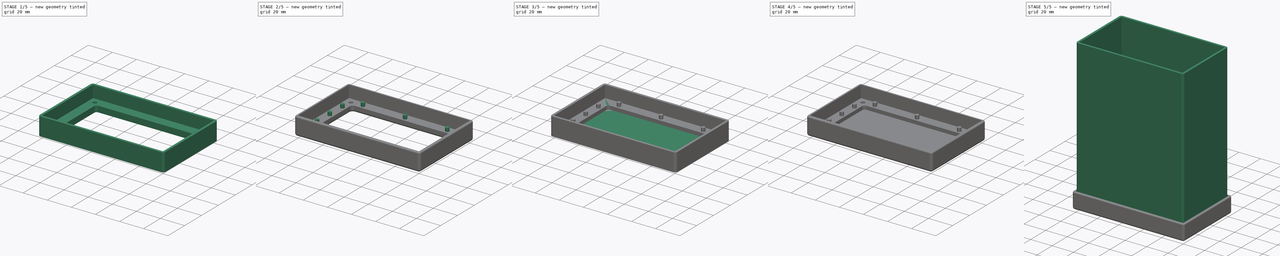
[diagram: build sequence overview — one tinted view per stage of 5, left to right]
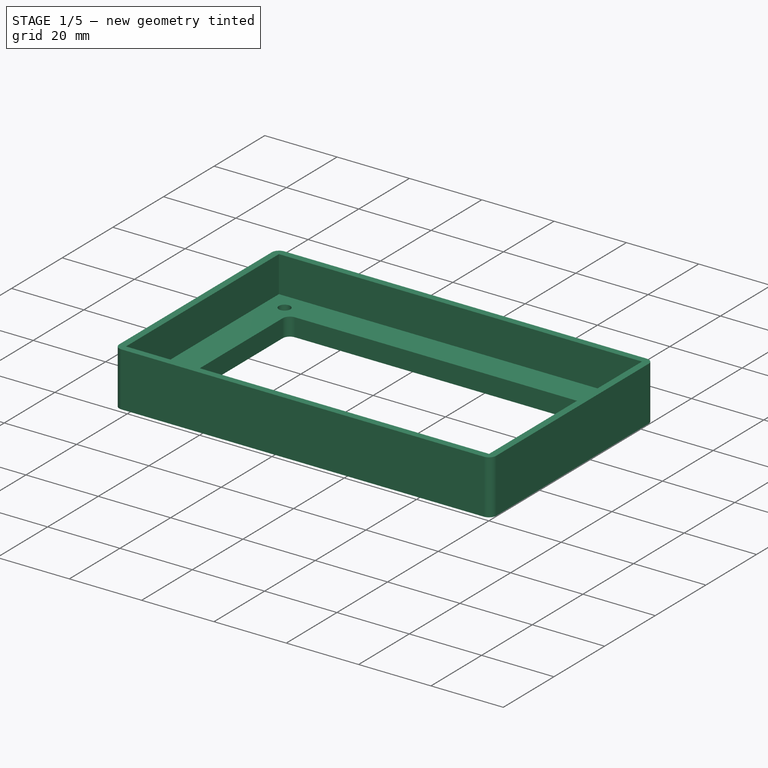
[diagram: stage 1 of 5 — iso view after this stage's code; geometry added in this stage tinted green]
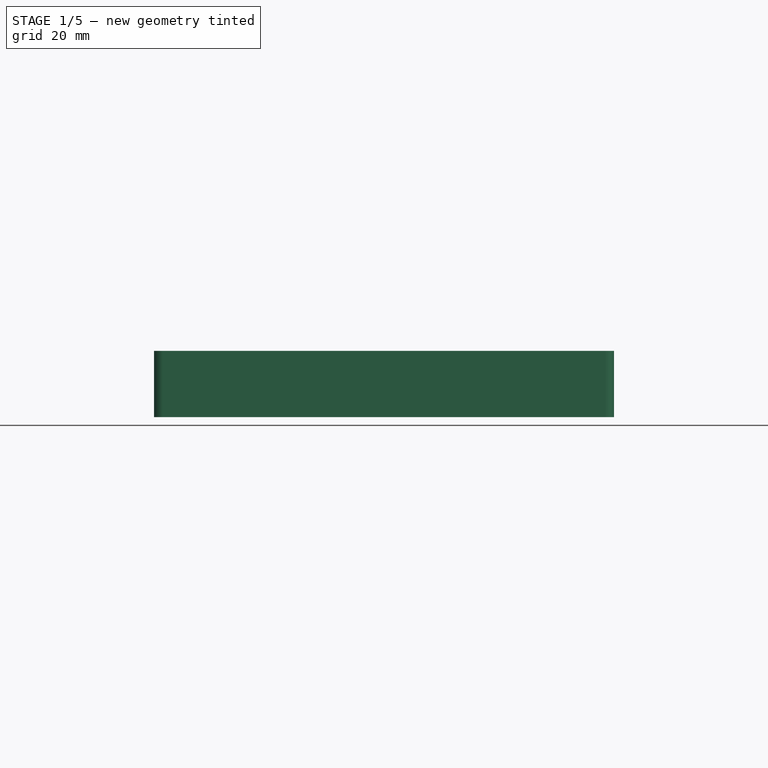
[diagram: stage 1 of 5 — front view after this stage's code; geometry added in this stage tinted green]
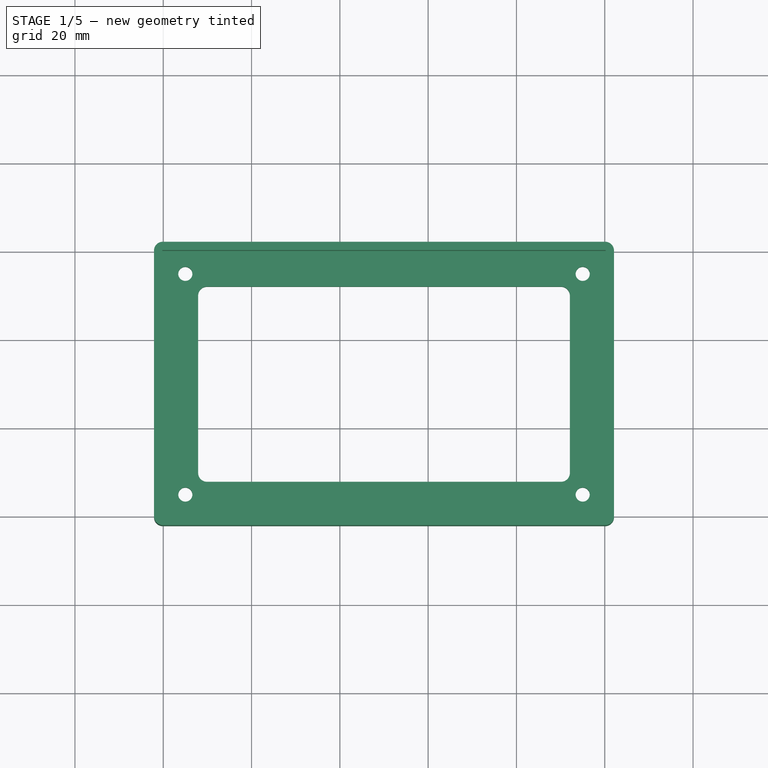
[diagram: stage 1 of 5 — top view after this stage's code; geometry added in this stage tinted green]
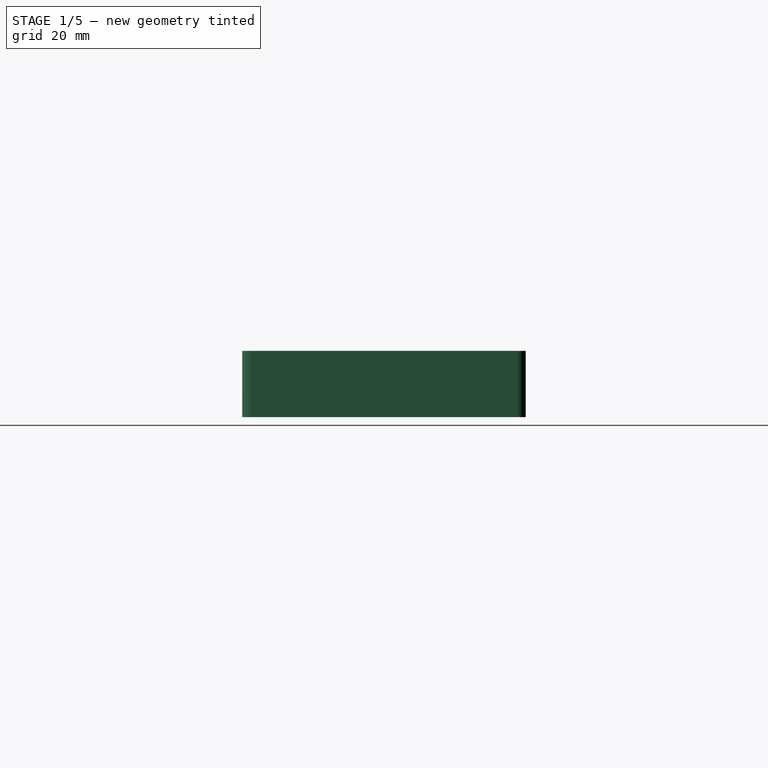
[diagram: stage 1 of 5 — right view after this stage's code; geometry added in this stage tinted green]
FCSTD DOCUMENT  (FreeCAD 0.21R33771 (Git))
Label: ADVtypeT_paramEnclosure
License: All rights reserved
LicenseURL: http://en.wikipedia.org/wiki/All_rights_reserved
objects: Sketcher::SketchObject×11, PartDesign::Pad×7, PartDesign::Body×5, PartDesign::Pocket×4, PartDesign::Fillet×4, Spreadsheet::Sheet×1
note: 46 computed .brp shape members not serialized (recipe doc carries the construction recipe); baked Part::Feature solids carry a one-line shape summary decoded from their .brp

FEATURE [PartDesign::Body] Body003  label="FrameFront"
  Group = -> [Sketch002,Pad002,Sketch004,Pocket,Sketch003,Pocket001,Fillet,Fillet001,Sketch005,Pad003]
  Origin = -> Origin125
  Placement = pos=(0,0,-7) rot=(0,0,1;0rad)
  Tip = -> Pad003
  expr: .Placement.Base.z = -Spreadsheet.thickness - 5
FEATURE [Sketcher::SketchObject] Sketch006
  FullyConstrained = true
  MapMode = 5
  expr: Constraints[13] = Spreadsheet.thickness
  expr: Constraints[14] = Spreadsheet.height + 2.1
  expr: Constraints[15] = Spreadsheet.width + 2.1
  expr: Constraints[31] = Spreadsheet.thickness
  sketch-geometry (16):
    g0: LineSegment StartX=-0.1 StartY=62.1 StartZ=0 EndX=100.1 EndY=62.1 EndZ=0
    g1: LineSegment StartX=102.1 StartY=60.1 StartZ=0 EndX=102.1 EndY=-0.1 EndZ=0
    g2: LineSegment StartX=-0.1 StartY=-2.1 StartZ=0 EndX=100.1 EndY=-2.1 EndZ=0
    g3: LineSegment StartX=-2.1 StartY=-0.1 StartZ=0 EndX=-2.1 EndY=60.1 EndZ=0
    g4: ArcOfCircle CenterX=-0.1 CenterY=60.1 CenterZ=0 NormalX=0 NormalY=0 NormalZ=1 AngleXU=0 Radius=2 StartAngle=1.5708 EndAngle=3.14159
    g5: ArcOfCircle CenterX=100.1 CenterY=60.1 CenterZ=0 NormalX=0 NormalY=0 NormalZ=1 AngleXU=0 Radius=2 StartAngle=1.1e-15 EndAngle=1.5708
    g6: ArcOfCircle CenterX=100.1 CenterY=-0.1 CenterZ=0 NormalX=0 NormalY=0 NormalZ=1 AngleXU=0 Radius=2 StartAngle=4.71239 EndAngle=6.28319
    g7: ArcOfCircle CenterX=-0.1 CenterY=-0.1 CenterZ=0 NormalX=0 NormalY=0 NormalZ=1 AngleXU=0 Radius=2 StartAngle=3.14159 EndAngle=4.71239
    g8: ArcOfCircle CenterX=9.9 CenterY=50.1 CenterZ=0 NormalX=0 NormalY=0 NormalZ=1 AngleXU=0 Radius=2 StartAngle=1.5708 EndAngle=3.14159
    g9: ArcOfCircle CenterX=90.1 CenterY=50.1 CenterZ=0 NormalX=0 NormalY=0 NormalZ=1 AngleXU=0 Radius=2 StartAngle=9e-16 EndAngle=1.5708
    g10: LineSegment StartX=9.9 StartY=52.1 StartZ=0 EndX=90.1 EndY=52.1 EndZ=0
    g11: LineSegment StartX=7.9 StartY=50.1 StartZ=0 EndX=7.9 EndY=9.9 EndZ=0
    g12: LineSegment StartX=92.1 StartY=50.1 StartZ=0 EndX=92.1 EndY=9.9 EndZ=0
    g13: LineSegment StartX=9.9 StartY=7.9 StartZ=0 EndX=90.1 EndY=7.9 EndZ=0
    g14: ArcOfCircle CenterX=9.9 CenterY=9.9 CenterZ=0 NormalX=0 NormalY=0 NormalZ=1 AngleXU=0 Radius=2 StartAngle=3.14159 EndAngle=4.71239
    g15: ArcOfCircle CenterX=90.1 CenterY=9.9 CenterZ=0 NormalX=0 NormalY=0 NormalZ=1 AngleXU=0 Radius=2 StartAngle=4.71239 EndAngle=6.28319
  constraints (40):
    c: Horizontal(g0)
    c: Vertical(g1)
    c: Tangent(g7,g3) = 1.5708
    c: Tangent(g7,g2) = -1.5708
    c: Tangent(g6,g2) = -1.5708
    c: Tangent(g6,g1) = 1.5708
    c: Tangent(g5,g0) = 1.5708
    c: Tangent(g5,g1) = 1.5708
    c: Tangent(g4,g0) = 1.5708
    c: Tangent(g4,g3) = 1.5708
    c: Equal(g4,g5)
    c: Equal(g5,g7)
    c: Equal(g7,g6)
    c: Radius(g4) = 2
    c: DistanceY(g0) = 62.1
    c: DistanceX(g1) = 102.1
    c: Horizontal(g10)
    c: Vertical(g11)
    c: Vertical(g12)
    c: Horizontal(g13)
    c: Tangent(g15,g12) = 1.5708
    c: Tangent(g15,g13) = -1.5708
    c: Tangent(g14,g13) = -1.5708
    c: Tangent(g14,g11) = -1.5708
    c: Tangent(g11,g8) = -1.5708
    c: Tangent(g10,g8) = 1.5708
    c: Tangent(g10,g9) = 1.5708
    c: Tangent(g12,g9) = 1.5708
    c: Equal(g8,g9)
    c: Equal(g9,g14)
    c: Equal(g14,g15)
    c: Radius(g8) = 2
    c: DistanceY(g2,g13) = 10
    c: DistanceY(g8,g0) = 10
    c: DistanceX(g3,g11) = 10
    c: DistanceX(g9,g1) = 10
    c: Vertical(g3)
    c: Horizontal(g2)
    c: DistanceX(g3) = -2.1
    c: DistanceY(g2) = -2.1
FEATURE [PartDesign::Pad] Pad004
  Direction = (0,0,1)
  Length = 15
  Length2 = 10
  Profile = -> Sketch006
  ReferenceAxis = -> Sketch006 [N_Axis]
  Type = 0
FEATURE [Sketcher::SketchObject] Sketch008
  FullyConstrained = true
  MapMode = 5
  Placement = pos=(0,0,15) rot=(0,0,1;0rad)
  Support = -> [Pad004]
  expr: Constraints[8] = Spreadsheet.height + 0.4
  expr: Constraints[9] = Spreadsheet.width + 0.4
  sketch-geometry (4):
    g0: LineSegment StartX=-0.2 StartY=60.2 StartZ=0 EndX=100.2 EndY=60.2 EndZ=0
    g1: LineSegment StartX=100.2 StartY=60.2 StartZ=0 EndX=100.2 EndY=-0.2 EndZ=0
    g2: LineSegment StartX=100.2 StartY=-0.2 StartZ=0 EndX=-0.2 EndY=-0.2 EndZ=0
    g3: LineSegment StartX=-0.2 StartY=-0.2 StartZ=0 EndX=-0.2 EndY=60.2 EndZ=0
  constraints (12):
    c: Coincident(g0,g1)
    c: Coincident(g1,g2)
    c: Coincident(g2,g3)
    c: Coincident(g3,g0)
    c: Horizontal(g0)
    c: Horizontal(g2)
    c: Vertical(g1)
    c: Vertical(g3)
    c: DistanceY(g1,g1) = 60.4
    c: DistanceX(g0,g0) = 100.4
    c: DistanceX(g2) = -0.2
    c: DistanceY(g2) = -0.2
FEATURE [PartDesign::Pocket] Pocket002
  BaseFeature = -> Pad004
  Direction = (0,0,-1)
  Length = 10
  Length2 = 5
  Profile = -> Sketch008
  ReferenceAxis = -> Sketch008 [N_Axis]
  Type = 0
FEATURE [Sketcher::SketchObject] Sketch007
  FullyConstrained = true
  MapMode = 5
  Placement = pos=(0,0,5) rot=(0,0,1;0rad)
  Support = -> [Pocket002]
  expr: Constraints[10] = Spreadsheet.height - 5
  expr: Constraints[11] = Spreadsheet.height - 5
  expr: Constraints[8] = Spreadsheet.width - 5
  expr: Constraints[9] = Spreadsheet.width - 5
  sketch-geometry (4):
    g0: Circle CenterX=5 CenterY=55 CenterZ=0 NormalX=0 NormalY=0 NormalZ=1 AngleXU=0 Radius=1.6
    g1: Circle CenterX=95 CenterY=55 CenterZ=0 NormalX=0 NormalY=0 NormalZ=1 AngleXU=0 Radius=1.6
    g2: Circle CenterX=95 CenterY=5 CenterZ=0 NormalX=0 NormalY=0 NormalZ=1 AngleXU=0 Radius=1.6
    g3: Circle CenterX=5 CenterY=5 CenterZ=0 NormalX=0 NormalY=0 NormalZ=1 AngleXU=0 Radius=1.6
  constraints (12):
    c: Equal(g0,g3)
    c: Equal(g3,g1)
    c: Equal(g1,g2)
    c: Diameter(g0) = 3.2
    c: DistanceX(g3) = 5
    c: DistanceY(g3) = 5
    c: DistanceX(g0) = 5
    c: DistanceY(g2) = 5
    c: DistanceX(g2) = 95
    c: DistanceX(g1) = 95
    c: DistanceY(g1) = 55
    c: DistanceY(g0) = 55
FEATURE [PartDesign::Pocket] Pocket003
  BaseFeature = -> Pocket002
  Direction = (0,0,-1)
  Length = 12
  Length2 = 5
  Profile = -> Sketch007
  ReferenceAxis = -> Sketch007 [N_Axis]
  Type = 0
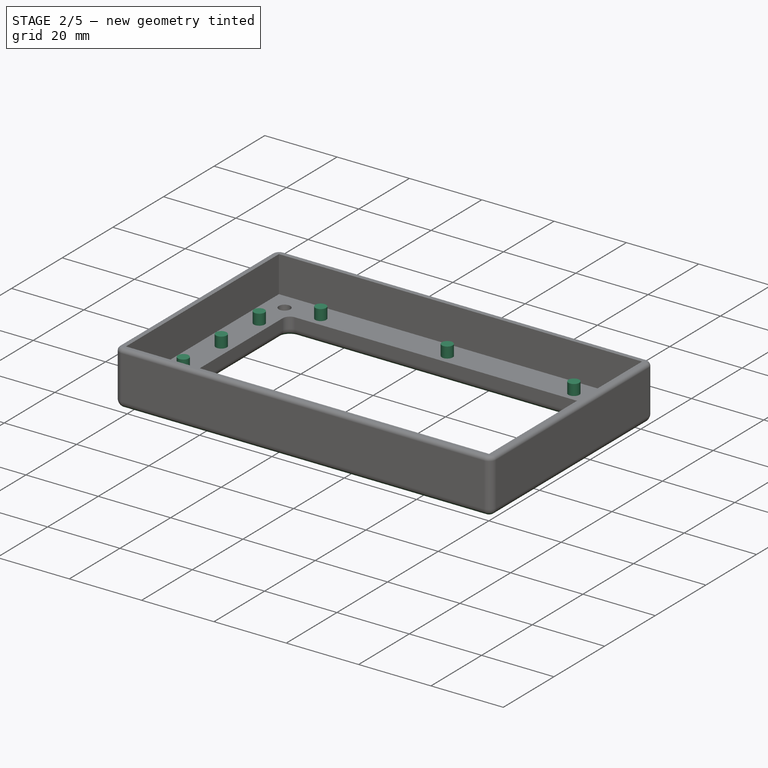
[diagram: stage 2 of 5 — iso view after this stage's code; geometry added in this stage tinted green]
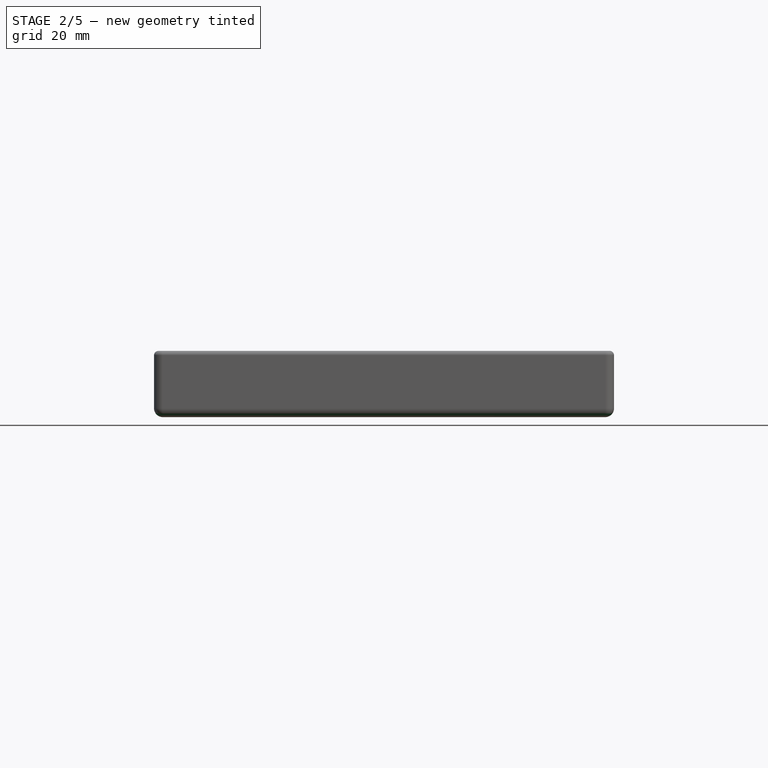
[diagram: stage 2 of 5 — front view after this stage's code; geometry added in this stage tinted green]
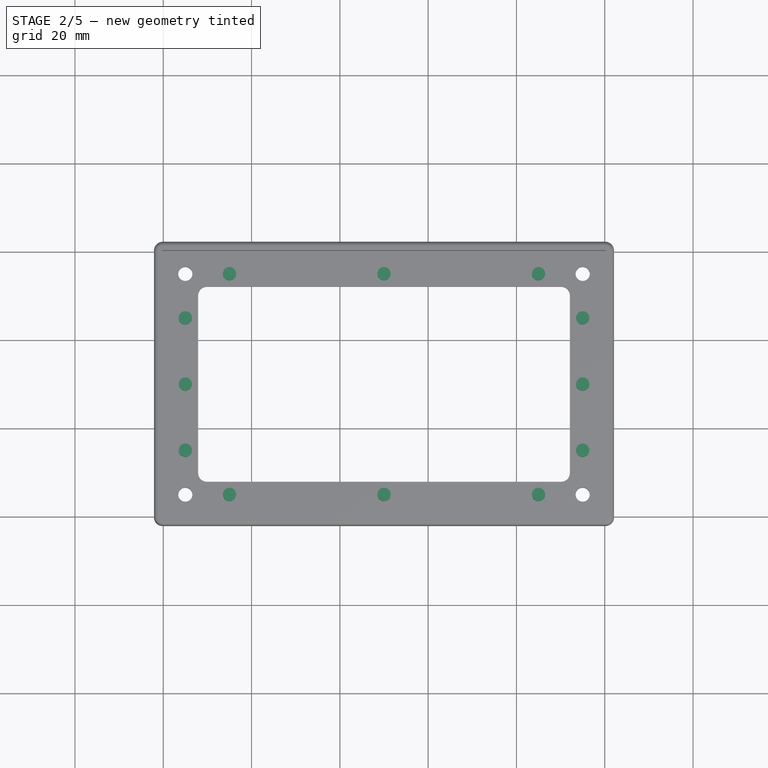
[diagram: stage 2 of 5 — top view after this stage's code; geometry added in this stage tinted green]
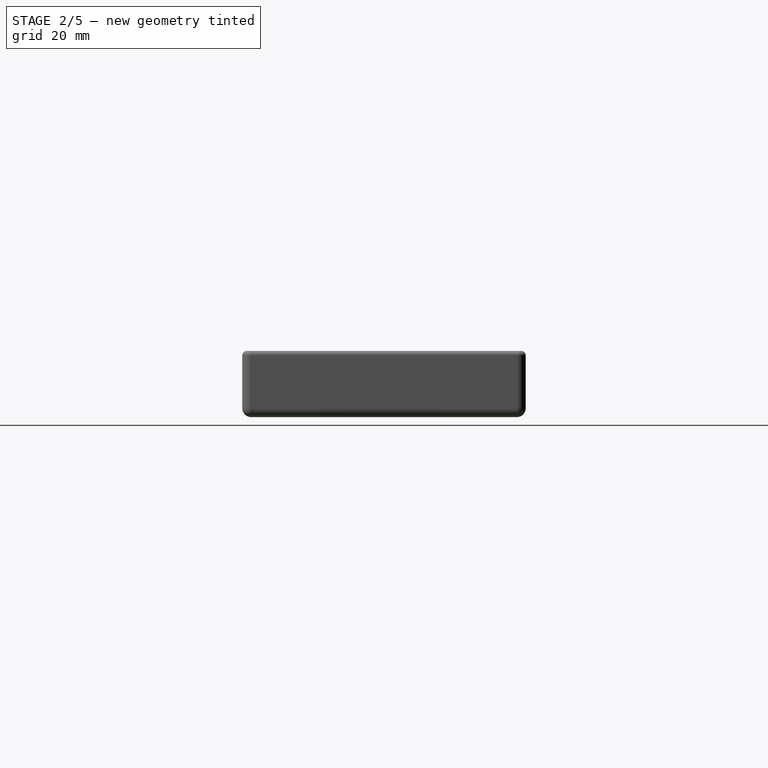
[diagram: stage 2 of 5 — right view after this stage's code; geometry added in this stage tinted green]
FEATURE [Sketcher::SketchObject] Sketch009
  FullyConstrained = true
  MapMode = 5
  Placement = pos=(0,0,5) rot=(0,0,1;0rad)
  Support = -> [Pocket003]
  expr: Constraints[15] = Spreadsheet.height - 15
  expr: Constraints[23] = Spreadsheet.width - 15
  expr: Constraints[24] = Spreadsheet.height - 5
  expr: Constraints[26] = Spreadsheet.height - 5
  expr: Constraints[28] = Spreadsheet.width - 15
  expr: Constraints[29] = Spreadsheet.width - 5
  expr: Constraints[2] = Spreadsheet.height / 2
  expr: Constraints[30] = Spreadsheet.width - 5
  expr: Constraints[31] = Spreadsheet.height - 15
  expr: Constraints[3] = Spreadsheet.height / 2
  expr: Constraints[5] = Spreadsheet.width / 2
  expr: Constraints[6] = Spreadsheet.width / 2
  expr: Constraints[7] = Spreadsheet.height - 5
  expr: Constraints[8] = Spreadsheet.width - 5
  sketch-geometry (12):
    g0: Circle CenterX=50 CenterY=55 CenterZ=0 NormalX=0 NormalY=0 NormalZ=1 AngleXU=0 Radius=1.5
    g1: Circle CenterX=50 CenterY=5 CenterZ=0 NormalX=0 NormalY=0 NormalZ=1 AngleXU=0 Radius=1.5
    g2: Circle CenterX=5 CenterY=30 CenterZ=0 NormalX=0 NormalY=0 NormalZ=1 AngleXU=0 Radius=1.5
    g3: Circle CenterX=95 CenterY=30 CenterZ=0 NormalX=0 NormalY=0 NormalZ=1 AngleXU=0 Radius=1.5
    g4: Circle CenterX=5 CenterY=45 CenterZ=0 NormalX=0 NormalY=0 NormalZ=1 AngleXU=0 Radius=1.5
    g5: Circle CenterX=15 CenterY=55 CenterZ=0 NormalX=0 NormalY=0 NormalZ=1 AngleXU=0 Radius=1.5
    g6: Circle CenterX=85 CenterY=55 CenterZ=0 NormalX=0 NormalY=0 NormalZ=1 AngleXU=0 Radius=1.5
    g7: Circle CenterX=95 CenterY=45 CenterZ=0 NormalX=0 NormalY=0 NormalZ=1 AngleXU=0 Radius=1.5
    g8: Circle CenterX=95 CenterY=15 CenterZ=0 NormalX=0 NormalY=0 NormalZ=1 AngleXU=0 Radius=1.5
    g9: Circle CenterX=85 CenterY=5 CenterZ=0 NormalX=0 NormalY=0 NormalZ=1 AngleXU=0 Radius=1.5
    g10: Circle CenterX=15 CenterY=5 CenterZ=0 NormalX=0 NormalY=0 NormalZ=1 AngleXU=0 Radius=1.5
    g11: Circle CenterX=5 CenterY=15 CenterZ=0 NormalX=0 NormalY=0 NormalZ=1 AngleXU=0 Radius=1.5
  constraints (36):
    c: Equal(g2,g3)
    c: DistanceY(g1) = 5
    c: DistanceY(g2) = 30
    c: DistanceY(g3) = 30
    c: DistanceX(g2) = 5
    c: DistanceX(g1) = 50
    c: DistanceX(g0) = 50
    c: DistanceY(g0) = 55
    c: DistanceX(g3) = 95
    c: Equal(g4,g11)
    c: Equal(g11,g10)
    c: Equal(g10,g9)
    c: Equal(g9,g8)
    c: Equal(g8,g7)
    c: Equal(g7,g6)
    c: DistanceY(g4) = 45
    c: DistanceX(g4) = 5
    c: DistanceX(g11) = 5
    c: DistanceY(g11) = 15
    c: DistanceY(g10) = 5
    c: DistanceX(g10) = 15
    c: DistanceY(g8) = 15
    c: DistanceY(g9) = 5
    c: DistanceX(g6) = 85
    c: DistanceY(g6) = 55
    c: DistanceX(g5) = 15
    c: DistanceY(g5) = 55
    c: Equal(g6,g5)
    c: DistanceX(g9) = 85
    c: DistanceX(g8) = 95
    c: DistanceX(g7) = 95
    c: DistanceY(g7) = 45
    c: Diameter(g5) = 3
    c: Equal(g2,g1)
    c: Equal(g3,g0)
    c: Equal(g0,g4)
FEATURE [PartDesign::Pad] Pad005
  BaseFeature = -> Pocket003
  Direction = (0,0,1)
  Length = 3
  Length2 = 10
  Profile = -> Sketch009
  ReferenceAxis = -> Sketch009 [N_Axis]
  Type = 0
  expr: Length = Spreadsheet.thickness + 1
FEATURE [PartDesign::Body] Body005  label="PanelRear"
  Group = -> [Sketch010,Pad006]
  Origin = -> Origin127
  Placement = pos=(0,0,143) rot=(0,0,1;0rad)
  Tip = -> Pad006
  expr: .Placement.Base.z = Spreadsheet.length + 3
FEATURE [PartDesign::Fillet] Fillet002
  Base = -> Pad005 [Edge11,Edge6,Edge3,Edge9,Edge12,Edge14,Edge15,Edge13,Edge23,Edge21,Edge19,Edge24,Edge25,Edge20,Edge22,Edge18]
  BaseFeature = -> Pad005
  Radius = 2
  SupportTransform = false
  UseAllEdges = false
FEATURE [PartDesign::Fillet] Fillet003
  Base = -> Fillet002 [Edge16,Edge15,Edge13,Edge14,Edge12,Edge6,Edge3,Edge11]
  BaseFeature = -> Fillet002
  Radius = 1
  SupportTransform = false
  UseAllEdges = false
FEATURE [PartDesign::Body] Body004  label="FrameRear"
  Group = -> [Sketch006,Pad004,Sketch008,Pocket002,Sketch007,Pocket003,Sketch009,Pad005,Fillet002,Fillet003]
  Origin = -> Origin126
  Placement = pos=(0,59.9,150) rot=(1,0,0;3.14159rad)
  Tip = -> Fillet003
  expr: .Placement.Base.z = Spreadsheet.length + 10
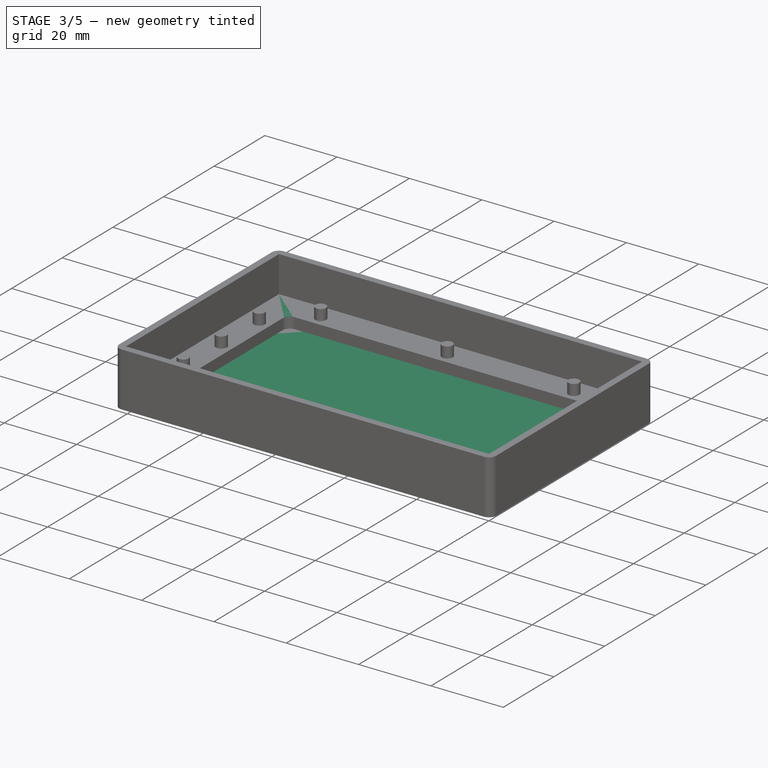
[diagram: stage 3 of 5 — iso view after this stage's code; geometry added in this stage tinted green]
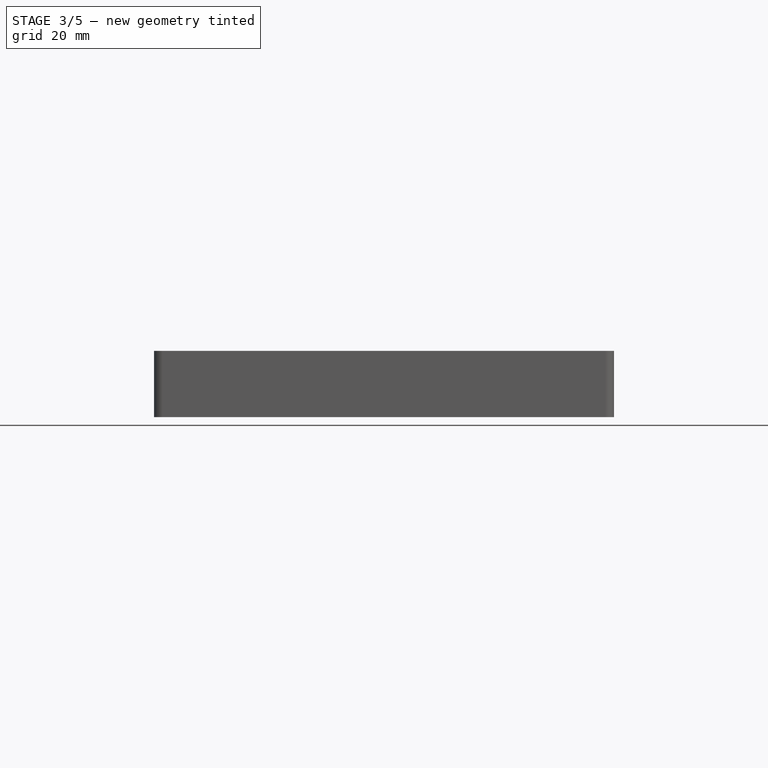
[diagram: stage 3 of 5 — front view after this stage's code; geometry added in this stage tinted green]
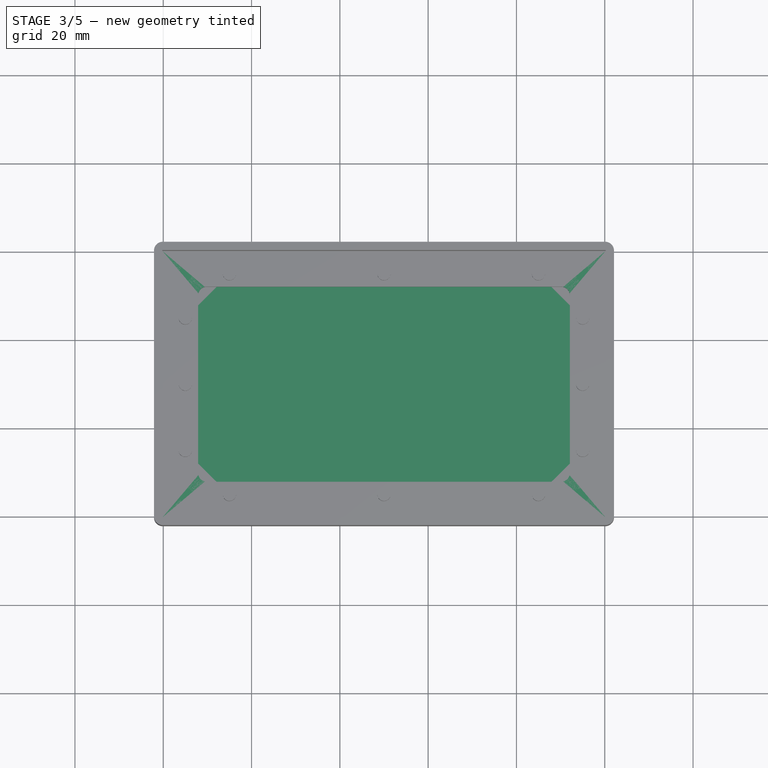
[diagram: stage 3 of 5 — top view after this stage's code; geometry added in this stage tinted green]
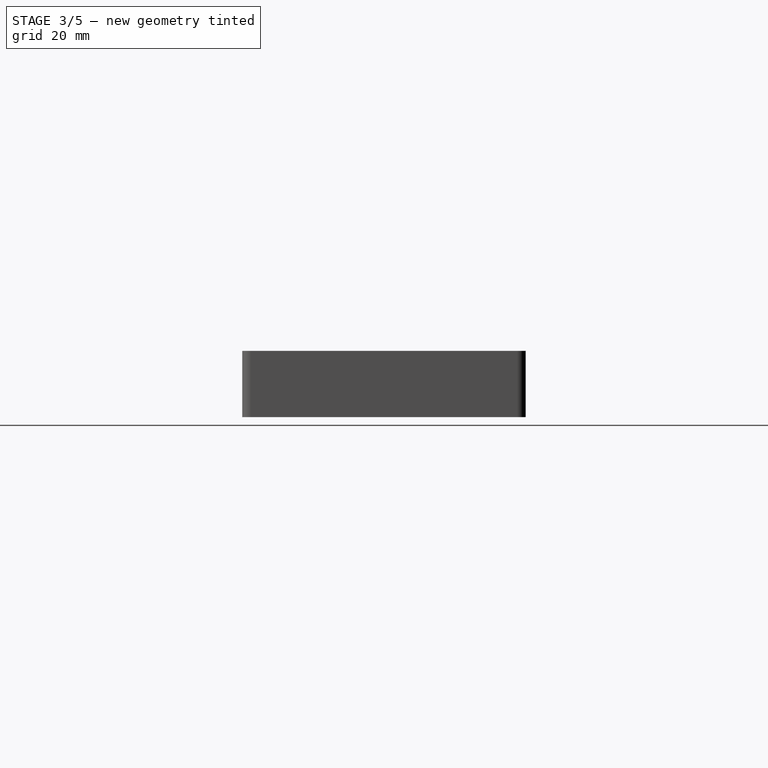
[diagram: stage 3 of 5 — right view after this stage's code; geometry added in this stage tinted green]
FEATURE [PartDesign::Body] Body  label="PanelFront"
  Group = -> [Sketch001,Pad001]
  Origin = -> Origin
  Placement = pos=(0,0,-2) rot=(0,0,1;0rad)
  Tip = -> Pad001
  expr: .Placement.Base.z = -Spreadsheet.thickness
FEATURE [Sketcher::SketchObject] Sketch002
  FullyConstrained = true
  MapMode = 5
  expr: Constraints[13] = Spreadsheet.thickness
  expr: Constraints[14] = Spreadsheet.height + 2.1
  expr: Constraints[15] = Spreadsheet.width + 2.1
  expr: Constraints[31] = Spreadsheet.thickness
  sketch-geometry (16):
    g0: LineSegment StartX=-0.1 StartY=62.1 StartZ=0 EndX=100.1 EndY=62.1 EndZ=0
    g1: LineSegment StartX=102.1 StartY=60.1 StartZ=0 EndX=102.1 EndY=-0.1 EndZ=0
    g2: LineSegment StartX=-0.1 StartY=-2.1 StartZ=0 EndX=100.1 EndY=-2.1 EndZ=0
    g3: LineSegment StartX=-2.1 StartY=-0.1 StartZ=0 EndX=-2.1 EndY=60.1 EndZ=0
    g4: ArcOfCircle CenterX=-0.1 CenterY=60.1 CenterZ=0 NormalX=0 NormalY=0 NormalZ=1 AngleXU=0 Radius=2 StartAngle=1.5708 EndAngle=3.14159
    g5: ArcOfCircle CenterX=100.1 CenterY=60.1 CenterZ=0 NormalX=0 NormalY=0 NormalZ=1 AngleXU=0 Radius=2 StartAngle=0 EndAngle=1.5708
    g6: ArcOfCircle CenterX=100.1 CenterY=-0.1 CenterZ=0 NormalX=0 NormalY=0 NormalZ=1 AngleXU=0 Radius=2 StartAngle=4.71239 EndAngle=6.28319
    g7: ArcOfCircle CenterX=-0.1 CenterY=-0.1 CenterZ=0 NormalX=0 NormalY=0 NormalZ=1 AngleXU=0 Radius=2 StartAngle=3.14159 EndAngle=4.71239
    g8: ArcOfCircle CenterX=9.9 CenterY=50.1 CenterZ=0 NormalX=0 NormalY=0 NormalZ=1 AngleXU=0 Radius=2 StartAngle=1.5708 EndAngle=3.14159
    g9: ArcOfCircle CenterX=90.1 CenterY=50.1 CenterZ=0 NormalX=0 NormalY=0 NormalZ=1 AngleXU=0 Radius=2 StartAngle=7e-16 EndAngle=1.5708
    g10: LineSegment StartX=9.9 StartY=52.1 StartZ=0 EndX=90.1 EndY=52.1 EndZ=0
    g11: LineSegment StartX=7.9 StartY=50.1 StartZ=0 EndX=7.9 EndY=9.9 EndZ=0
    g12: LineSegment StartX=92.1 StartY=50.1 StartZ=0 EndX=92.1 EndY=9.9 EndZ=0
    g13: LineSegment StartX=9.9 StartY=7.9 StartZ=0 EndX=90.1 EndY=7.9 EndZ=0
    g14: ArcOfCircle CenterX=9.9 CenterY=9.9 CenterZ=0 NormalX=0 NormalY=0 NormalZ=1 AngleXU=0 Radius=2 StartAngle=3.14159 EndAngle=4.71239
    g15: ArcOfCircle CenterX=90.1 CenterY=9.9 CenterZ=0 NormalX=0 NormalY=0 NormalZ=1 AngleXU=0 Radius=2 StartAngle=4.71239 EndAngle=6.28319
  constraints (40):
    c: Horizontal(g0)
    c: Vertical(g1)
    c: Tangent(g7,g3) = 1.5708
    c: Tangent(g7,g2) = -1.5708
    c: Tangent(g6,g2) = -1.5708
    c: Tangent(g6,g1) = 1.5708
    c: Tangent(g5,g0) = 1.5708
    c: Tangent(g5,g1) = 1.5708
    c: Tangent(g4,g0) = 1.5708
    c: Tangent(g4,g3) = 1.5708
    c: Equal(g4,g5)
    c: Equal(g5,g7)
    c: Equal(g7,g6)
    c: Radius(g4) = 2
    c: DistanceY(g0) = 62.1
    c: DistanceX(g1) = 102.1
    c: Horizontal(g10)
    c: Vertical(g11)
    c: Vertical(g12)
    c: Horizontal(g13)
    c: Tangent(g15,g12) = 1.5708
    c: Tangent(g15,g13) = -1.5708
    c: Tangent(g14,g13) = -1.5708
    c: Tangent(g14,g11) = -1.5708
    c: Tangent(g11,g8) = -1.5708
    c: Tangent(g10,g8) = 1.5708
    c: Tangent(g10,g9) = 1.5708
    c: Tangent(g12,g9) = 1.5708
    c: Equal(g8,g9)
    c: Equal(g9,g14)
    c: Equal(g14,g15)
    c: Radius(g8) = 2
    c: DistanceY(g2,g13) = 10
    c: DistanceY(g8,g0) = 10
    c: DistanceX(g3,g11) = 10
    c: DistanceX(g9,g1) = 10
    c: Vertical(g3)
    c: Horizontal(g2)
    c: DistanceX(g3) = -2.1
    c: DistanceY(g2) = -2.1
FEATURE [PartDesign::Pad] Pad002
  Direction = (0,0,1)
  Length = 15
  Length2 = 10
  Profile = -> Sketch002
  ReferenceAxis = -> Sketch002 [N_Axis]
  Type = 0
FEATURE [Sketcher::SketchObject] Sketch004
  FullyConstrained = true
  MapMode = 5
  Placement = pos=(0,0,15) rot=(0,0,1;0rad)
  Support = -> [Pad002]
  expr: Constraints[8] = Spreadsheet.height + 0.4
  expr: Constraints[9] = Spreadsheet.width + 0.4
  sketch-geometry (4):
    g0: LineSegment StartX=-0.2 StartY=60.2 StartZ=0 EndX=100.2 EndY=60.2 EndZ=0
    g1: LineSegment StartX=100.2 StartY=60.2 StartZ=0 EndX=100.2 EndY=-0.2 EndZ=0
    g2: LineSegment StartX=100.2 StartY=-0.2 StartZ=0 EndX=-0.2 EndY=-0.2 EndZ=0
    g3: LineSegment StartX=-0.2 StartY=-0.2 StartZ=0 EndX=-0.2 EndY=60.2 EndZ=0
  constraints (12):
    c: Coincident(g0,g1)
    c: Coincident(g1,g2)
    c: Coincident(g2,g3)
    c: Coincident(g3,g0)
    c: Horizontal(g0)
    c: Horizontal(g2)
    c: Vertical(g1)
    c: Vertical(g3)
    c: DistanceY(g1,g1) = 60.4
    c: DistanceX(g0,g0) = 100.4
    c: DistanceX(g2) = -0.2
    c: DistanceY(g2) = -0.2
FEATURE [PartDesign::Pocket] Pocket
  BaseFeature = -> Pad002
  Direction = (0,0,-1)
  Length = 10
  Length2 = 5
  Profile = -> Sketch004
  ReferenceAxis = -> Sketch004 [N_Axis]
  Type = 0
FEATURE [Sketcher::SketchObject] Sketch010
  FullyConstrained = true
  MapMode = 5
  Support = -> [XY_Plane127]
  expr: Constraints[17] = Spreadsheet.thickness
  expr: Constraints[18] = Spreadsheet.height
  expr: Constraints[19] = Spreadsheet.width
  expr: Constraints[31] = Spreadsheet.height / 2
  expr: Constraints[32] = Spreadsheet.height / 2
  expr: Constraints[36] = Spreadsheet.width / 2
  expr: Constraints[37] = Spreadsheet.width / 2
  expr: Constraints[38] = Spreadsheet.height - 5
  expr: Constraints[39] = Spreadsheet.height - 5
  expr: Constraints[40] = Spreadsheet.height - 5
  expr: Constraints[41] = Spreadsheet.width - 5
  expr: Constraints[42] = Spreadsheet.width - 5
  expr: Constraints[43] = Spreadsheet.width - 5
  expr: Constraints[51] = Spreadsheet.height - 15
  expr: Constraints[59] = Spreadsheet.width - 15
  expr: Constraints[60] = Spreadsheet.height - 5
  expr: Constraints[62] = Spreadsheet.height - 5
  expr: Constraints[64] = Spreadsheet.width - 15
  expr: Constraints[65] = Spreadsheet.width - 5
  expr: Constraints[66] = Spreadsheet.width - 5
  expr: Constraints[67] = Spreadsheet.height - 15
  sketch-geometry (24):
    g0: LineSegment StartX=2 StartY=60 StartZ=0 EndX=98 EndY=60 EndZ=0
    g1: LineSegment StartX=100 StartY=58 StartZ=0 EndX=100 EndY=2 EndZ=0
    g2: LineSegment StartX=2 StartY=0 StartZ=0 EndX=98 EndY=0 EndZ=0
    g3: LineSegment StartX=0 StartY=2 StartZ=0 EndX=0 EndY=58 EndZ=0
    g4: ArcOfCircle CenterX=2 CenterY=58 CenterZ=0 NormalX=0 NormalY=0 NormalZ=1 AngleXU=0 Radius=2 StartAngle=1.5708 EndAngle=3.14159
    g5: ArcOfCircle CenterX=98 CenterY=58 CenterZ=0 NormalX=0 NormalY=0 NormalZ=1 AngleXU=0 Radius=2 StartAngle=-9e-16 EndAngle=1.5708
    g6: ArcOfCircle CenterX=98 CenterY=2 CenterZ=0 NormalX=0 NormalY=0 NormalZ=1 AngleXU=0 Radius=2 StartAngle=4.71239 EndAngle=6.28319
    g7: ArcOfCircle CenterX=2 CenterY=2 CenterZ=0 NormalX=0 NormalY=0 NormalZ=1 AngleXU=0 Radius=2 StartAngle=3.14159 EndAngle=4.71239
    g8: Circle CenterX=5 CenterY=55 CenterZ=0 NormalX=0 NormalY=0 NormalZ=1 AngleXU=0 Radius=1.6
    g9: Circle CenterX=50 CenterY=55 CenterZ=0 NormalX=0 NormalY=0 NormalZ=1 AngleXU=0 Radius=1.6
    g10: Circle CenterX=95 CenterY=55 CenterZ=0 NormalX=0 NormalY=0 NormalZ=1 AngleXU=0 Radius=1.6
    g11: Circle CenterX=5 CenterY=5 CenterZ=0 NormalX=0 NormalY=0 NormalZ=1 AngleXU=0 Radius=1.6
    g12: Circle CenterX=50 CenterY=5 CenterZ=0 NormalX=0 NormalY=0 NormalZ=1 AngleXU=0 Radius=1.6
    g13: Circle CenterX=95 CenterY=5 CenterZ=0 NormalX=0 NormalY=0 NormalZ=1 AngleXU=0 Radius=1.6
    g14: Circle CenterX=5 CenterY=30 CenterZ=0 NormalX=0 NormalY=0 NormalZ=1 AngleXU=0 Radius=1.6
    g15: Circle CenterX=95 CenterY=30 CenterZ=0 NormalX=0 NormalY=0 NormalZ=1 AngleXU=0 Radius=1.6
    g16: Circle CenterX=5 CenterY=45 CenterZ=0 NormalX=0 NormalY=0 NormalZ=1 AngleXU=0 Radius=1.6
    g17: Circle CenterX=15 CenterY=55 CenterZ=0 NormalX=0 NormalY=0 NormalZ=1 AngleXU=0 Radius=1.6
    g18: Circle CenterX=85 CenterY=55 CenterZ=0 NormalX=0 NormalY=0 NormalZ=1 AngleXU=0 Radius=1.6
    g19: Circle CenterX=95 CenterY=45 CenterZ=0 NormalX=0 NormalY=0 NormalZ=1 AngleXU=0 Radius=1.6
    g20: Circle CenterX=95 CenterY=15 CenterZ=0 NormalX=0 NormalY=0 NormalZ=1 AngleXU=0 Radius=1.6
    g21: Circle CenterX=85 CenterY=5 CenterZ=0 NormalX=0 NormalY=0 NormalZ=1 AngleXU=0 Radius=1.6
    g22: Circle CenterX=15 CenterY=5 CenterZ=0 NormalX=0 NormalY=0 NormalZ=1 AngleXU=0 Radius=1.6
    g23: Circle CenterX=5 CenterY=15 CenterZ=0 NormalX=0 NormalY=0 NormalZ=1 AngleXU=0 Radius=1.6
  constraints (68):
    c: Horizontal(g0)
    c: Vertical(g1)
    c: PointOnObject(g2,g-1)
    c: PointOnObject(g2,g-1)
    c: PointOnObject(g3,g-2)
    c: PointOnObject(g3,g-2)
    c: Tangent(g7,g3) = 1.5708
    c: Tangent(g7,g2) = -1.5708
    c: Tangent(g6,g2) = -1.5708
    c: Tangent(g6,g1) = 1.5708
    c: Tangent(g5,g0) = 1.5708
    c: Tangent(g5,g1) = 1.5708
    c: Tangent(g4,g0) = 1.5708
    c: Tangent(g4,g3) = 1.5708
    c: Equal(g4,g5)
    c: Equal(g5,g7)
    c: Equal(g7,g6)
    c: Radius(g4) = 2
    c: DistanceY(g0) = 60
    c: DistanceX(g1) = 100
    c: Equal(g8,g9)
    c: Equal(g9,g10)
    c: Equal(g10,g14)
    c: Equal(g14,g15)
    c: Equal(g15,g11)
    c: Equal(g11,g12)
    c: Equal(g12,g13)
    c: Diameter(g8) = 3.2
    c: DistanceY(g11) = 5
    c: DistanceY(g12) = 5
    c: DistanceY(g13) = 5
    c: DistanceY(g14) = 30
    c: DistanceY(g15) = 30
    c: DistanceX(g14) = 5
    c: DistanceX(g11) = 5
    c: DistanceX(g8) = 5
    c: DistanceX(g12) = 50
    c: DistanceX(g9) = 50
    c: DistanceY(g9) = 55
    c: DistanceY(g8) = 55
    c: DistanceY(g10) = 55
    c: DistanceX(g15) = 95
    c: DistanceX(g10) = 95
    c: DistanceX(g13) = 95
    c: Equal(g8,g16)
    c: Equal(g16,g23)
    c: Equal(g23,g22)
    c: Equal(g22,g21)
    c: Equal(g21,g20)
    c: Equal(g20,g19)
    c: Equal(g19,g18)
    c: DistanceY(g16) = 45
    c: DistanceX(g16) = 5
    c: DistanceX(g23) = 5
    c: DistanceY(g23) = 15
    c: DistanceY(g22) = 5
    c: DistanceX(g22) = 15
    c: DistanceY(g20) = 15
    c: DistanceY(g21) = 5
    c: DistanceX(g18) = 85
    c: DistanceY(g18) = 55
    c: DistanceX(g17) = 15
    c: DistanceY(g17) = 55
    c: Equal(g18,g17)
    c: DistanceX(g21) = 85
    c: DistanceX(g20) = 95
    c: DistanceX(g19) = 95
    c: DistanceY(g19) = 45
FEATURE [PartDesign::Pad] Pad006
  Direction = (0,0,1)
  Length = 2
  Length2 = 10
  Profile = -> Sketch010
  ReferenceAxis = -> Sketch010 [N_Axis]
  Type = 0
  expr: Length = Spreadsheet.thickness
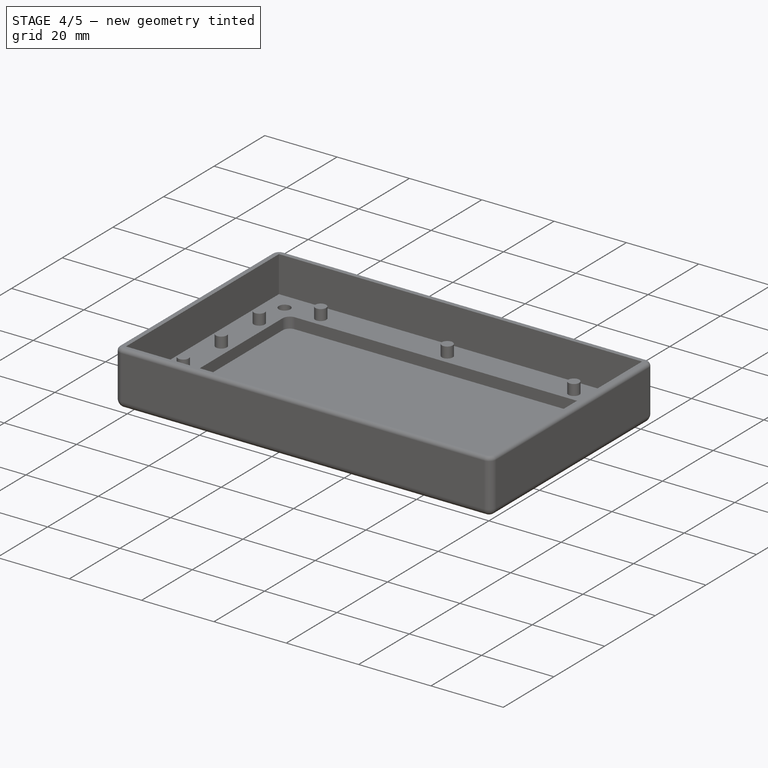
[diagram: stage 4 of 5 — iso view after this stage's code; geometry added in this stage tinted green]
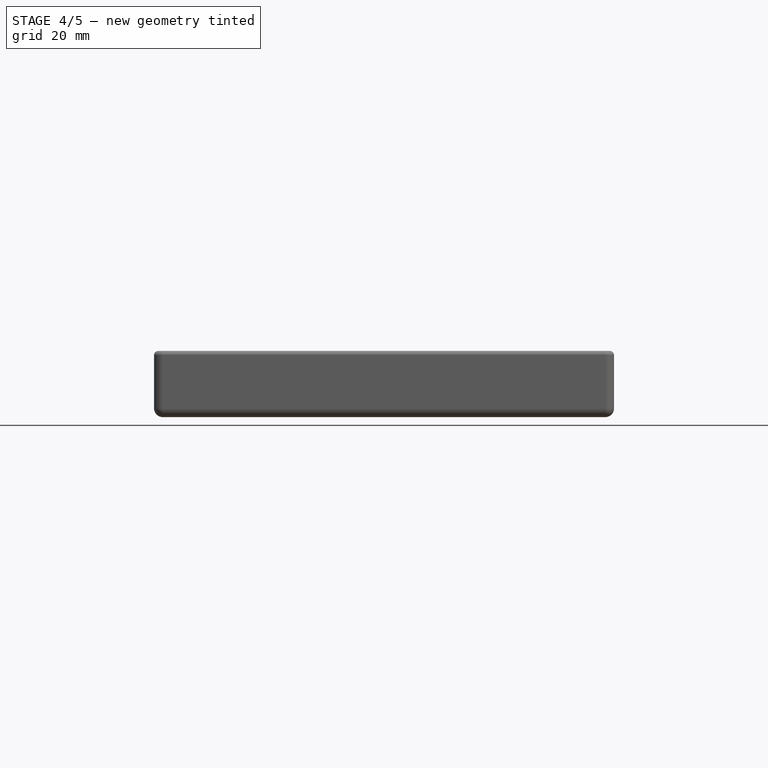
[diagram: stage 4 of 5 — front view after this stage's code; geometry added in this stage tinted green]
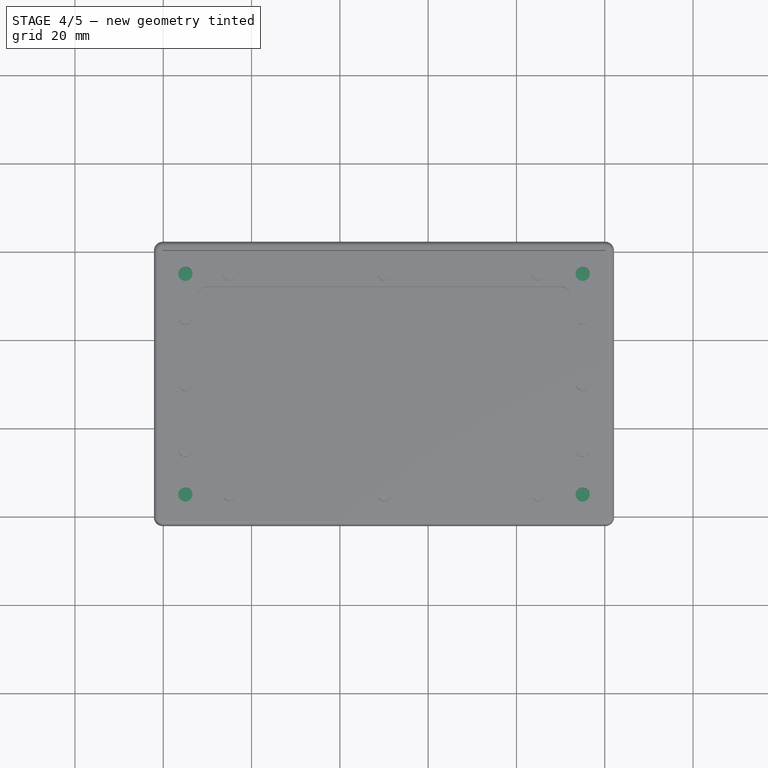
[diagram: stage 4 of 5 — top view after this stage's code; geometry added in this stage tinted green]
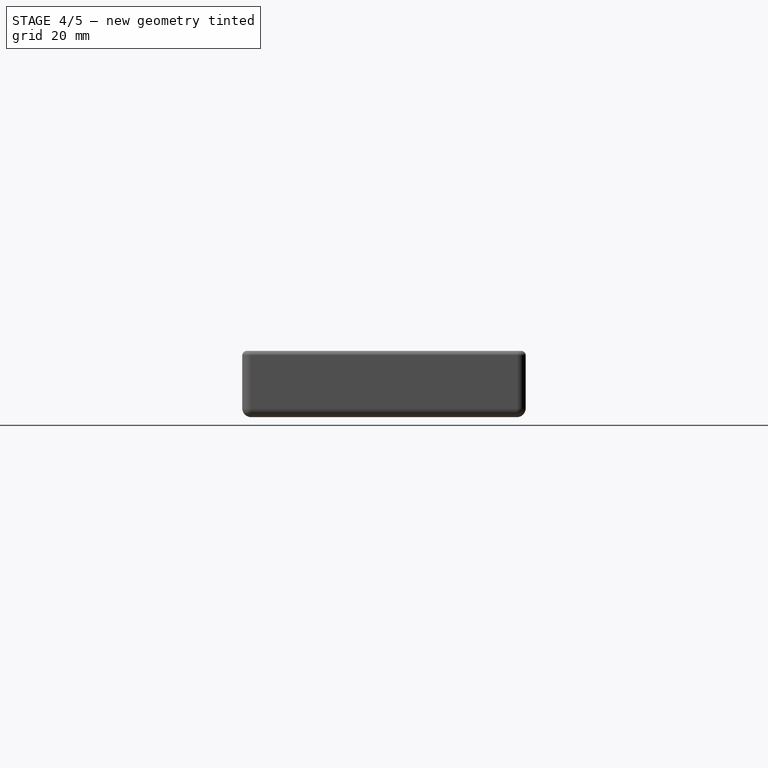
[diagram: stage 4 of 5 — right view after this stage's code; geometry added in this stage tinted green]
FEATURE [Sketcher::SketchObject] Sketch003
  FullyConstrained = true
  MapMode = 5
  Placement = pos=(0,0,5) rot=(0,0,1;0rad)
  Support = -> [Pocket]
  expr: Constraints[18] = Spreadsheet.width - 5
  expr: Constraints[19] = Spreadsheet.height - 5
  expr: Constraints[41] = Spreadsheet.height - 5
  expr: Constraints[83] = Spreadsheet.width - 5
  sketch-geometry (28):
    g0: LineSegment StartX=98.2332 StartY=55 StartZ=0 EndX=96.6166 EndY=57.8 EndZ=0
    g1: LineSegment StartX=96.6166 StartY=57.8 StartZ=0 EndX=93.3834 EndY=57.8 EndZ=0
    g2: LineSegment StartX=93.3834 StartY=57.8 StartZ=0 EndX=91.7668 EndY=55 EndZ=0
    g3: LineSegment StartX=91.7668 StartY=55 StartZ=0 EndX=93.3834 EndY=52.2 EndZ=0
    g4: LineSegment StartX=93.3834 StartY=52.2 StartZ=0 EndX=96.6166 EndY=52.2 EndZ=0
    g5: LineSegment StartX=96.6166 StartY=52.2 StartZ=0 EndX=98.2332 EndY=55 EndZ=0
    g6: Circle CenterX=95 CenterY=55 CenterZ=0 NormalX=0 NormalY=0 NormalZ=1 AngleXU=0 Radius=3.23316
    g7: LineSegment StartX=8.23316 StartY=55 StartZ=0 EndX=6.61658 EndY=57.8 EndZ=0
    g8: LineSegment StartX=6.61658 StartY=57.8 StartZ=0 EndX=3.38342 EndY=57.8 EndZ=0
    g9: LineSegment StartX=3.38342 StartY=57.8 StartZ=0 EndX=1.76684 EndY=55 EndZ=0
    g10: LineSegment StartX=1.76684 StartY=55 StartZ=0 EndX=3.38342 EndY=52.2 EndZ=0
    g11: LineSegment StartX=3.38342 StartY=52.2 StartZ=0 EndX=6.61658 EndY=52.2 EndZ=0
    g12: LineSegment StartX=6.61658 StartY=52.2 StartZ=0 EndX=8.23316 EndY=55 EndZ=0
    g13: Circle CenterX=5 CenterY=55 CenterZ=0 NormalX=0 NormalY=0 NormalZ=1 AngleXU=0 Radius=3.23316
    g14: LineSegment StartX=8.23316 StartY=5 StartZ=0 EndX=6.61658 EndY=7.8 EndZ=0
    g15: LineSegment StartX=6.61658 StartY=7.8 StartZ=0 EndX=3.38342 EndY=7.8 EndZ=0
    g16: LineSegment StartX=3.38342 StartY=7.8 StartZ=0 EndX=1.76684 EndY=5 EndZ=0
    g17: LineSegment StartX=1.76684 StartY=5 StartZ=0 EndX=3.38342 EndY=2.2 EndZ=0
    g18: LineSegment StartX=3.38342 StartY=2.2 StartZ=0 EndX=6.61658 EndY=2.2 EndZ=0
    g19: LineSegment StartX=6.61658 StartY=2.2 StartZ=0 EndX=8.23316 EndY=5 EndZ=0
    g20: Circle CenterX=5 CenterY=5 CenterZ=0 NormalX=0 NormalY=0 NormalZ=1 AngleXU=0 Radius=3.23316
    g21: LineSegment StartX=98.2332 StartY=5 StartZ=0 EndX=96.6166 EndY=7.8 EndZ=0
    g22: LineSegment StartX=96.6166 StartY=7.8 StartZ=0 EndX=93.3834 EndY=7.8 EndZ=0
    g23: LineSegment StartX=93.3834 StartY=7.8 StartZ=0 EndX=91.7668 EndY=5 EndZ=0
    g24: LineSegment StartX=91.7668 StartY=5 StartZ=0 EndX=93.3834 EndY=2.2 EndZ=0
    g25: LineSegment StartX=93.3834 StartY=2.2 StartZ=0 EndX=96.6166 EndY=2.2 EndZ=0
    g26: LineSegment StartX=96.6166 StartY=2.2 StartZ=0 EndX=98.2332 EndY=5 EndZ=0
    g27: Circle CenterX=95 CenterY=5 CenterZ=0 NormalX=0 NormalY=0 NormalZ=1 AngleXU=0 Radius=3.23316
  constraints (68):
    c: Coincident(g0,g1)
    c: Coincident(g1,g2)
    c: Coincident(g2,g3)
    c: Coincident(g3,g4)
    c: Coincident(g4,g5)
    c: Coincident(g5,g0)
    c: Equal(g0, g1-g5) x5
    c: PointOnObject(g0,g6)
    c: PointOnObject(g1,g6)
    c: PointOnObject(g2,g6)
    c: PointOnObject(g3,g6)
    c: PointOnObject(g4,g6)
    c: PointOnObject(g5,g6)
    c: Horizontal(g1)
    c: DistanceX(g6) = 95
    c: DistanceY(g6) = 55
    c: Distance(g4,g2) = 5.6
    c: Coincident(g7,g8)
    c: Coincident(g8,g9)
    c: Coincident(g9,g10)
    c: Coincident(g10,g11)
    c: Coincident(g11,g12)
    c: Coincident(g12,g7)
    c: Equal(g7, g8-g12) x5
    c: PointOnObject(g7,g13)
    c: PointOnObject(g8,g13)
    c: PointOnObject(g9,g13)
    c: PointOnObject(g10,g13)
    c: PointOnObject(g11,g13)
    c: PointOnObject(g12,g13)
    c: Horizontal(g8)
    c: Distance(g10,g7) = 5.6
    c: DistanceX(g13) = 5
    c: DistanceY(g13) = 55
    c: Coincident(g14,g15)
    c: Coincident(g15,g16)
    c: Coincident(g16,g17)
    c: Coincident(g17,g18)
    c: Coincident(g18,g19)
    c: Coincident(g19,g14)
    c: Equal(g14, g15-g19) x5
    c: PointOnObject(g14,g20)
    c: PointOnObject(g15,g20)
    c: PointOnObject(g16,g20)
    c: PointOnObject(g17,g20)
    c: PointOnObject(g18,g20)
    c: PointOnObject(g19,g20)
    c: Horizontal(g15)
    c: Distance(g14,g17) = 5.6
    c: DistanceX(g20) = 5
    c: DistanceY(g20) = 5
    c: Coincident(g21,g22)
    c: Coincident(g22,g23)
    c: Coincident(g23,g24)
    c: Coincident(g24,g25)
    c: Coincident(g25,g26)
    c: Coincident(g26,g21)
    c: Equal(g21, g22-g26) x5
    c: PointOnObject(g21,g27)
    c: PointOnObject(g22,g27)
    c: PointOnObject(g23,g27)
    c: PointOnObject(g24,g27)
    c: PointOnObject(g25,g27)
    c: PointOnObject(g26,g27)
    c: Horizontal(g22)
    c: Distance(g21,g24) = 5.6
    c: DistanceY(g27) = 5
    c: DistanceX(g27) = 95
FEATURE [PartDesign::Pocket] Pocket001
  BaseFeature = -> Pocket
  Direction = (0,0,-1)
  Length = 4.5
  Length2 = 5
  Profile = -> Sketch003
  ReferenceAxis = -> Sketch003 [N_Axis]
  Type = 0
FEATURE [PartDesign::Fillet] Fillet
  Base = -> Pocket001 [Face4]
  BaseFeature = -> Pocket001
  Radius = 2
  SupportTransform = false
  UseAllEdges = false
FEATURE [PartDesign::Fillet] Fillet001
  Base = -> Fillet [Edge13,Edge11,Edge3,Edge6,Edge12,Edge14,Edge16,Edge15]
  BaseFeature = -> Fillet
  Radius = 1
  SupportTransform = false
  UseAllEdges = false
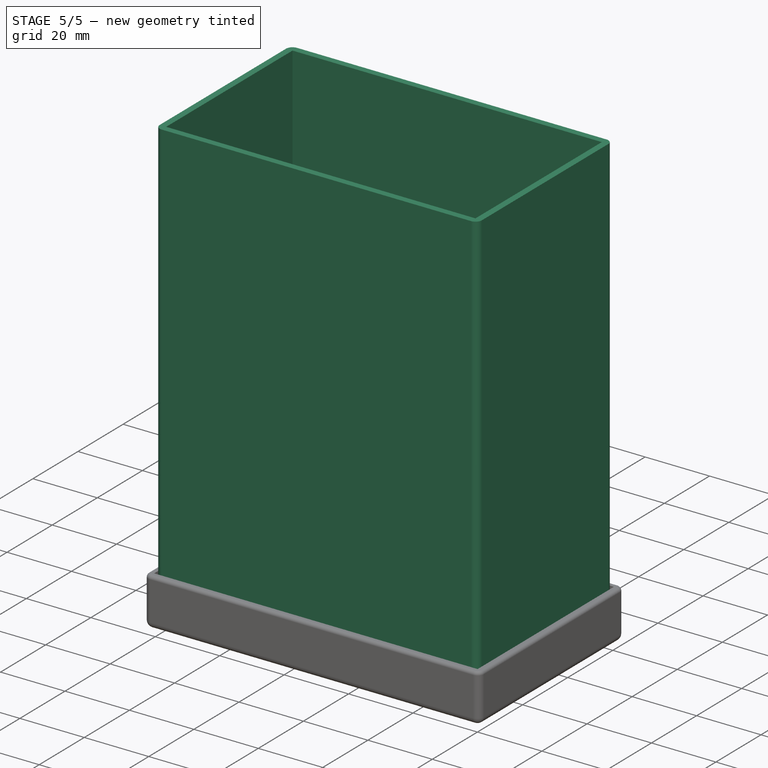
[diagram: stage 5 of 5 — iso view after this stage's code; geometry added in this stage tinted green]
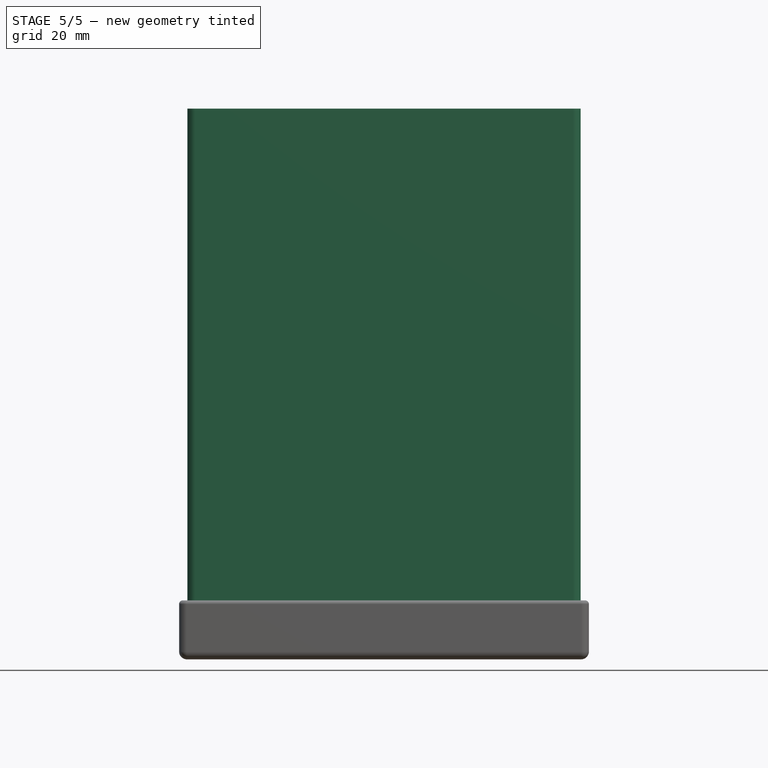
[diagram: stage 5 of 5 — front view after this stage's code; geometry added in this stage tinted green]
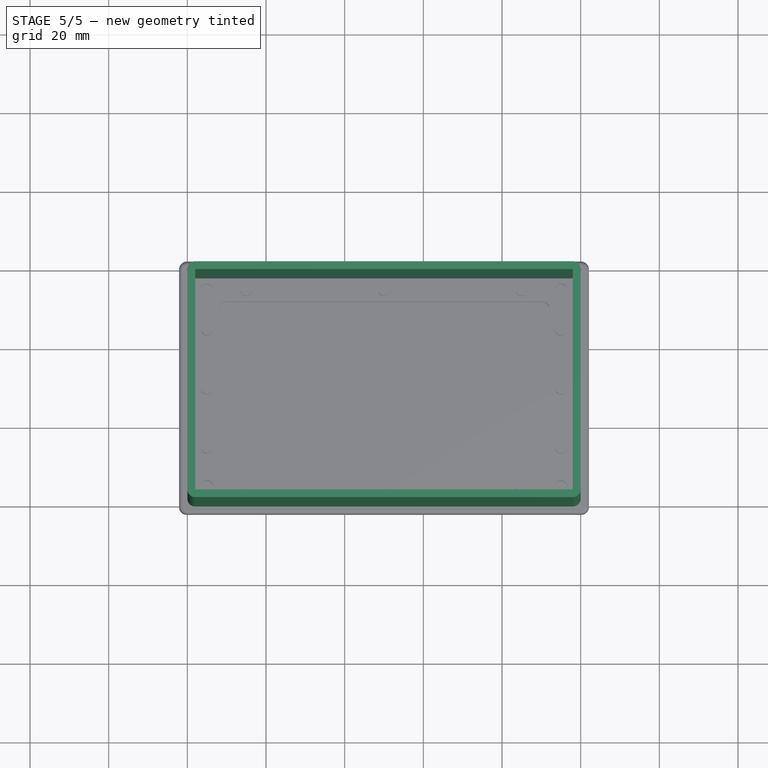
[diagram: stage 5 of 5 — top view after this stage's code; geometry added in this stage tinted green]
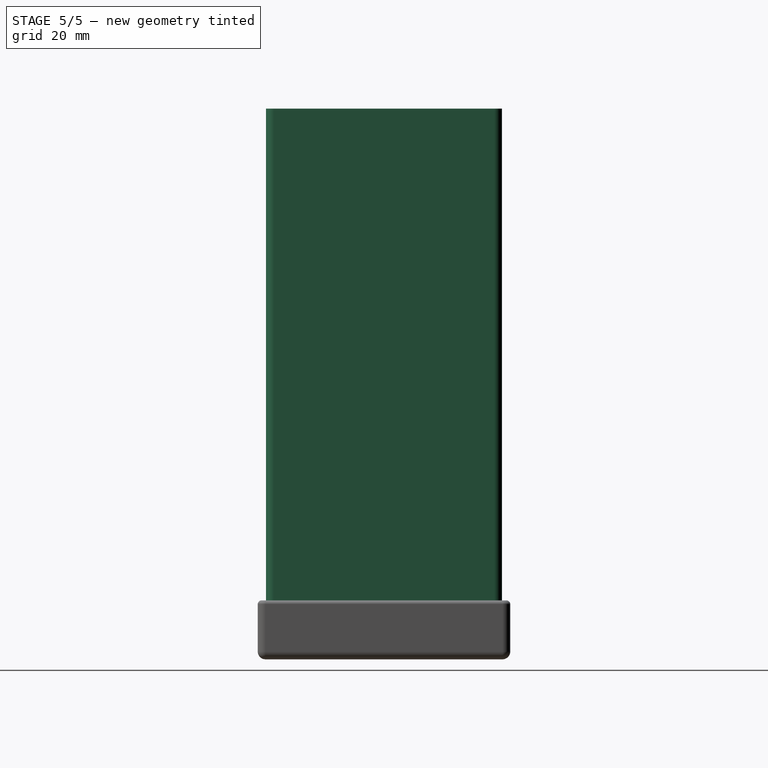
[diagram: stage 5 of 5 — right view after this stage's code; geometry added in this stage tinted green]
FEATURE [Spreadsheet::Sheet] Spreadsheet
  cells = A2='inner length (min 50); B2=140; C2(length)==B2 < 75 ? 75 : B2; A3='inner width (min 50); B3=100; C3(width)==B3 < 50 ? 50 : B3; A4='inner height (min 25); B4=60; C4(height)==B4 < 25 ? 25 : B4; A5='thickness (min 0.6 max 2.0); B5=3; C5(thickness)==B5 < 0.6 ? 0.6 : (B5 > 2 ? 2 : B5)
FEATURE [Sketcher::SketchObject] Sketch
  FullyConstrained = true
  MapMode = 5
  Support = -> [XY_Plane124]
  expr: Constraints[27] = Spreadsheet.thickness
  expr: Constraints[28] = Spreadsheet.width - Spreadsheet.thickness
  expr: Constraints[29] = Spreadsheet.height - Spreadsheet.thickness
  sketch-geometry (12):
    g0: LineSegment StartX=0 StartY=58 StartZ=0 EndX=0 EndY=2 EndZ=0
    g1: LineSegment StartX=2 StartY=0 StartZ=0 EndX=98 EndY=0 EndZ=0
    g2: LineSegment StartX=2 StartY=60 StartZ=0 EndX=98 EndY=60 EndZ=0
    g3: LineSegment StartX=100 StartY=58 StartZ=0 EndX=100 EndY=2 EndZ=0
    g4: ArcOfCircle CenterX=2 CenterY=58 CenterZ=0 NormalX=0 NormalY=0 NormalZ=1 AngleXU=0 Radius=2 StartAngle=1.5708 EndAngle=3.14159
    g5: ArcOfCircle CenterX=98 CenterY=58 CenterZ=0 NormalX=0 NormalY=0 NormalZ=1 AngleXU=0 Radius=2 StartAngle=1.199e-13 EndAngle=1.5708
    g6: ArcOfCircle CenterX=98 CenterY=2 CenterZ=0 NormalX=0 NormalY=0 NormalZ=1 AngleXU=0 Radius=2 StartAngle=4.71239 EndAngle=6.28319
    g7: ArcOfCircle CenterX=2 CenterY=2 CenterZ=0 NormalX=0 NormalY=0 NormalZ=1 AngleXU=0 Radius=2 StartAngle=3.14159 EndAngle=4.71239
    g8: LineSegment StartX=2 StartY=58 StartZ=0 EndX=98 EndY=58 EndZ=0
    g9: LineSegment StartX=98 StartY=58 StartZ=0 EndX=98 EndY=2 EndZ=0
    g10: LineSegment StartX=98 StartY=2 StartZ=0 EndX=2 EndY=2 EndZ=0
    g11: LineSegment StartX=2 StartY=2 StartZ=0 EndX=2 EndY=58 EndZ=0
  constraints (30):
    c: PointOnObject(g0,g-2)
    c: PointOnObject(g0,g-2)
    c: PointOnObject(g1,g-1)
    c: PointOnObject(g1,g-1)
    c: Horizontal(g2)
    c: Vertical(g3)
    c: Tangent(g7,g0) = -1.5708
    c: Tangent(g7,g1) = -1.5708
    c: Tangent(g4,g0) = -1.5708
    c: Tangent(g4,g2) = 1.5708
    c: Tangent(g5,g2) = 1.5708
    c: Tangent(g5,g3) = 1.5708
    c: Tangent(g6,g3) = 1.5708
    c: Tangent(g6,g1) = -1.5708
    c: Coincident(g8,g9)
    c: Coincident(g9,g10)
    c: Coincident(g10,g11)
    c: Coincident(g11,g8)
    c: Horizontal(g8)
    c: Horizontal(g10)
    c: Vertical(g9)
    c: Vertical(g11)
    c: Coincident(g8,g4)
    c: Coincident(g9,g6)
    c: Equal(g4,g5)
    c: Equal(g5,g6)
    c: Equal(g6,g7)
    c: Radius(g4) = 2
    c: DistanceX(g5) = 98
    c: DistanceY(g5) = 58
FEATURE [PartDesign::Pad] Pad
  Direction = (0,0,1)
  Length = 140
  Length2 = 10
  Profile = -> Sketch
  ReferenceAxis = -> Sketch [N_Axis]
  Type = 0
  expr: Length = Spreadsheet.length
FEATURE [PartDesign::Body] Body002  label="RectangleTube"
  Group = -> [Sketch,Pad]
  Origin = -> Origin124
  Tip = -> Pad
FEATURE [Sketcher::SketchObject] Sketch001
  FullyConstrained = true
  MapMode = 5
  Support = -> [XY_Plane]
  expr: Constraints[17] = Spreadsheet.thickness
  expr: Constraints[18] = Spreadsheet.height
  expr: Constraints[19] = Spreadsheet.width
  expr: Constraints[31] = Spreadsheet.height / 2
  expr: Constraints[32] = Spreadsheet.height / 2
  expr: Constraints[36] = Spreadsheet.width / 2
  expr: Constraints[37] = Spreadsheet.width / 2
  expr: Constraints[38] = Spreadsheet.height - 5
  expr: Constraints[39] = Spreadsheet.height - 5
  expr: Constraints[40] = Spreadsheet.height - 5
  expr: Constraints[41] = Spreadsheet.width - 5
  expr: Constraints[42] = Spreadsheet.width - 5
  expr: Constraints[43] = Spreadsheet.width - 5
  expr: Constraints[51] = Spreadsheet.height - 15
  expr: Constraints[59] = Spreadsheet.width - 15
  expr: Constraints[60] = Spreadsheet.height - 5
  expr: Constraints[62] = Spreadsheet.height - 5
  expr: Constraints[64] = Spreadsheet.width - 15
  expr: Constraints[65] = Spreadsheet.width - 5
  expr: Constraints[66] = Spreadsheet.width - 5
  expr: Constraints[67] = Spreadsheet.height - 15
  sketch-geometry (24):
    g0: LineSegment StartX=2 StartY=60 StartZ=0 EndX=98 EndY=60 EndZ=0
    g1: LineSegment StartX=100 StartY=58 StartZ=0 EndX=100 EndY=2 EndZ=0
    g2: LineSegment StartX=2 StartY=0 StartZ=0 EndX=98 EndY=0 EndZ=0
    g3: LineSegment StartX=0 StartY=2 StartZ=0 EndX=0 EndY=58 EndZ=0
    g4: ArcOfCircle CenterX=2 CenterY=58 CenterZ=0 NormalX=0 NormalY=0 NormalZ=1 AngleXU=0 Radius=2 StartAngle=1.5708 EndAngle=3.14159
    g5: ArcOfCircle CenterX=98 CenterY=58 CenterZ=0 NormalX=0 NormalY=0 NormalZ=1 AngleXU=0 Radius=2 StartAngle=6e-16 EndAngle=1.5708
    g6: ArcOfCircle CenterX=98 CenterY=2 CenterZ=0 NormalX=0 NormalY=0 NormalZ=1 AngleXU=0 Radius=2 StartAngle=4.71239 EndAngle=6.28319
    g7: ArcOfCircle CenterX=2 CenterY=2 CenterZ=0 NormalX=0 NormalY=0 NormalZ=1 AngleXU=0 Radius=2 StartAngle=3.14159 EndAngle=4.71239
    g8: Circle CenterX=5 CenterY=55 CenterZ=0 NormalX=0 NormalY=0 NormalZ=1 AngleXU=0 Radius=1.6
    g9: Circle CenterX=50 CenterY=55 CenterZ=0 NormalX=0 NormalY=0 NormalZ=1 AngleXU=0 Radius=1.6
    g10: Circle CenterX=95 CenterY=55 CenterZ=0 NormalX=0 NormalY=0 NormalZ=1 AngleXU=0 Radius=1.6
    g11: Circle CenterX=5 CenterY=5 CenterZ=0 NormalX=0 NormalY=0 NormalZ=1 AngleXU=0 Radius=1.6
    g12: Circle CenterX=50 CenterY=5 CenterZ=0 NormalX=0 NormalY=0 NormalZ=1 AngleXU=0 Radius=1.6
    g13: Circle CenterX=95 CenterY=5 CenterZ=0 NormalX=0 NormalY=0 NormalZ=1 AngleXU=0 Radius=1.6
    g14: Circle CenterX=5 CenterY=30 CenterZ=0 NormalX=0 NormalY=0 NormalZ=1 AngleXU=0 Radius=1.6
    g15: Circle CenterX=95 CenterY=30 CenterZ=0 NormalX=0 NormalY=0 NormalZ=1 AngleXU=0 Radius=1.6
    g16: Circle CenterX=5 CenterY=45 CenterZ=0 NormalX=0 NormalY=0 NormalZ=1 AngleXU=0 Radius=1.6
    g17: Circle CenterX=15 CenterY=55 CenterZ=0 NormalX=0 NormalY=0 NormalZ=1 AngleXU=0 Radius=1.6
    g18: Circle CenterX=85 CenterY=55 CenterZ=0 NormalX=0 NormalY=0 NormalZ=1 AngleXU=0 Radius=1.6
    g19: Circle CenterX=95 CenterY=45 CenterZ=0 NormalX=0 NormalY=0 NormalZ=1 AngleXU=0 Radius=1.6
    g20: Circle CenterX=95 CenterY=15 CenterZ=0 NormalX=0 NormalY=0 NormalZ=1 AngleXU=0 Radius=1.6
    g21: Circle CenterX=85 CenterY=5 CenterZ=0 NormalX=0 NormalY=0 NormalZ=1 AngleXU=0 Radius=1.6
    g22: Circle CenterX=15 CenterY=5 CenterZ=0 NormalX=0 NormalY=0 NormalZ=1 AngleXU=0 Radius=1.6
    g23: Circle CenterX=5 CenterY=15 CenterZ=0 NormalX=0 NormalY=0 NormalZ=1 AngleXU=0 Radius=1.6
  constraints (68):
    c: Horizontal(g0)
    c: Vertical(g1)
    c: PointOnObject(g2,g-1)
    c: PointOnObject(g2,g-1)
    c: PointOnObject(g3,g-2)
    c: PointOnObject(g3,g-2)
    c: Tangent(g7,g3) = 1.5708
    c: Tangent(g7,g2) = -1.5708
    c: Tangent(g6,g2) = -1.5708
    c: Tangent(g6,g1) = 1.5708
    c: Tangent(g5,g0) = 1.5708
    c: Tangent(g5,g1) = 1.5708
    c: Tangent(g4,g0) = 1.5708
    c: Tangent(g4,g3) = 1.5708
    c: Equal(g4,g5)
    c: Equal(g5,g7)
    c: Equal(g7,g6)
    c: Radius(g4) = 2
    c: DistanceY(g0) = 60
    c: DistanceX(g1) = 100
    c: Equal(g8,g9)
    c: Equal(g9,g10)
    c: Equal(g10,g14)
    c: Equal(g14,g15)
    c: Equal(g15,g11)
    c: Equal(g11,g12)
    c: Equal(g12,g13)
    c: Diameter(g8) = 3.2
    c: DistanceY(g11) = 5
    c: DistanceY(g12) = 5
    c: DistanceY(g13) = 5
    c: DistanceY(g14) = 30
    c: DistanceY(g15) = 30
    c: DistanceX(g14) = 5
    c: DistanceX(g11) = 5
    c: DistanceX(g8) = 5
    c: DistanceX(g12) = 50
    c: DistanceX(g9) = 50
    c: DistanceY(g9) = 55
    c: DistanceY(g8) = 55
    c: DistanceY(g10) = 55
    c: DistanceX(g15) = 95
    c: DistanceX(g10) = 95
    c: DistanceX(g13) = 95
    c: Equal(g8,g16)
    c: Equal(g16,g23)
    c: Equal(g23,g22)
    c: Equal(g22,g21)
    c: Equal(g21,g20)
    c: Equal(g20,g19)
    c: Equal(g19,g18)
    c: DistanceY(g16) = 45
    c: DistanceX(g16) = 5
    c: DistanceX(g23) = 5
    c: DistanceY(g23) = 15
    c: DistanceY(g22) = 5
    c: DistanceX(g22) = 15
    c: DistanceY(g20) = 15
    c: DistanceY(g21) = 5
    c: DistanceX(g18) = 85
    c: DistanceY(g18) = 55
    c: DistanceX(g17) = 15
    c: DistanceY(g17) = 55
    c: Equal(g18,g17)
    c: DistanceX(g21) = 85
    c: DistanceX(g20) = 95
    c: DistanceX(g19) = 95
    c: DistanceY(g19) = 45
FEATURE [PartDesign::Pad] Pad001
  Direction = (0,0,1)
  Length = 2
  Length2 = 10
  Profile = -> Sketch001
  ReferenceAxis = -> Sketch001 [N_Axis]
  Type = 0
  expr: Length = Spreadsheet.thickness
FEATURE [Sketcher::SketchObject] Sketch005
  FullyConstrained = true
  MapMode = 5
  Placement = pos=(0,0,5) rot=(0,0,1;0rad)
  Support = -> [Fillet001]
  expr: Constraints[15] = Spreadsheet.height - 15
  expr: Constraints[23] = Spreadsheet.width - 15
  expr: Constraints[24] = Spreadsheet.height - 5
  expr: Constraints[26] = Spreadsheet.height - 5
  expr: Constraints[28] = Spreadsheet.width - 15
  expr: Constraints[29] = Spreadsheet.width - 5
  expr: Constraints[2] = Spreadsheet.height / 2
  expr: Constraints[30] = Spreadsheet.width - 5
  expr: Constraints[31] = Spreadsheet.height - 15
  expr: Constraints[3] = Spreadsheet.height / 2
  expr: Constraints[5] = Spreadsheet.width / 2
  expr: Constraints[6] = Spreadsheet.width / 2
  expr: Constraints[7] = Spreadsheet.height - 5
  expr: Constraints[8] = Spreadsheet.width - 5
  sketch-geometry (12):
    g0: Circle CenterX=50 CenterY=55 CenterZ=0 NormalX=0 NormalY=0 NormalZ=1 AngleXU=0 Radius=1.5
    g1: Circle CenterX=50 CenterY=5 CenterZ=0 NormalX=0 NormalY=0 NormalZ=1 AngleXU=0 Radius=1.5
    g2: Circle CenterX=5 CenterY=30 CenterZ=0 NormalX=0 NormalY=0 NormalZ=1 AngleXU=0 Radius=1.5
    g3: Circle CenterX=95 CenterY=30 CenterZ=0 NormalX=0 NormalY=0 NormalZ=1 AngleXU=0 Radius=1.5
    g4: Circle CenterX=5 CenterY=45 CenterZ=0 NormalX=0 NormalY=0 NormalZ=1 AngleXU=0 Radius=1.5
    g5: Circle CenterX=15 CenterY=55 CenterZ=0 NormalX=0 NormalY=0 NormalZ=1 AngleXU=0 Radius=1.5
    g6: Circle CenterX=85 CenterY=55 CenterZ=0 NormalX=0 NormalY=0 NormalZ=1 AngleXU=0 Radius=1.5
    g7: Circle CenterX=95 CenterY=45 CenterZ=0 NormalX=0 NormalY=0 NormalZ=1 AngleXU=0 Radius=1.5
    g8: Circle CenterX=95 CenterY=15 CenterZ=0 NormalX=0 NormalY=0 NormalZ=1 AngleXU=0 Radius=1.5
    g9: Circle CenterX=85 CenterY=5 CenterZ=0 NormalX=0 NormalY=0 NormalZ=1 AngleXU=0 Radius=1.5
    g10: Circle CenterX=15 CenterY=5 CenterZ=0 NormalX=0 NormalY=0 NormalZ=1 AngleXU=0 Radius=1.5
    g11: Circle CenterX=5 CenterY=15 CenterZ=0 NormalX=0 NormalY=0 NormalZ=1 AngleXU=0 Radius=1.5
  constraints (36):
    c: Equal(g2,g3)
    c: DistanceY(g1) = 5
    c: DistanceY(g2) = 30
    c: DistanceY(g3) = 30
    c: DistanceX(g2) = 5
    c: DistanceX(g1) = 50
    c: DistanceX(g0) = 50
    c: DistanceY(g0) = 55
    c: DistanceX(g3) = 95
    c: Equal(g4,g11)
    c: Equal(g11,g10)
    c: Equal(g10,g9)
    c: Equal(g9,g8)
    c: Equal(g8,g7)
    c: Equal(g7,g6)
    c: DistanceY(g4) = 45
    c: DistanceX(g4) = 5
    c: DistanceX(g11) = 5
    c: DistanceY(g11) = 15
    c: DistanceY(g10) = 5
    c: DistanceX(g10) = 15
    c: DistanceY(g8) = 15
    c: DistanceY(g9) = 5
    c: DistanceX(g6) = 85
    c: DistanceY(g6) = 55
    c: DistanceX(g5) = 15
    c: DistanceY(g5) = 55
    c: Equal(g6,g5)
    c: DistanceX(g9) = 85
    c: DistanceX(g8) = 95
    c: DistanceX(g7) = 95
    c: DistanceY(g7) = 45
    c: Diameter(g5) = 3
    c: Equal(g2,g1)
    c: Equal(g3,g0)
    c: Equal(g0,g4)
FEATURE [PartDesign::Pad] Pad003
  BaseFeature = -> Fillet001
  Direction = (0,0,1)
  Length = 3
  Length2 = 10
  Profile = -> Sketch005
  ReferenceAxis = -> Sketch005 [N_Axis]
  Type = 0
  expr: Length = Spreadsheet.thickness + 1
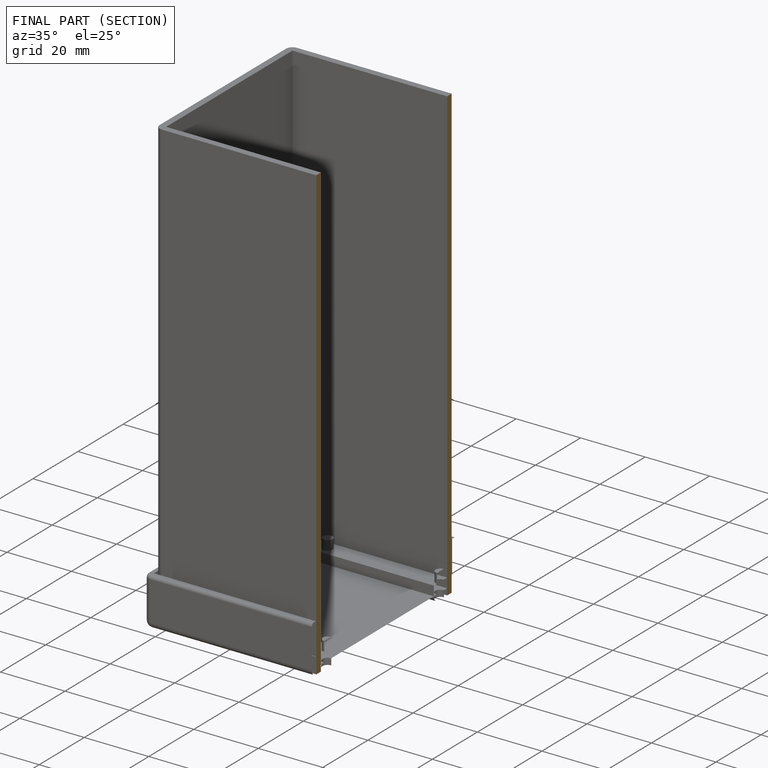
[diagram: finished part — half-section view (interior)]
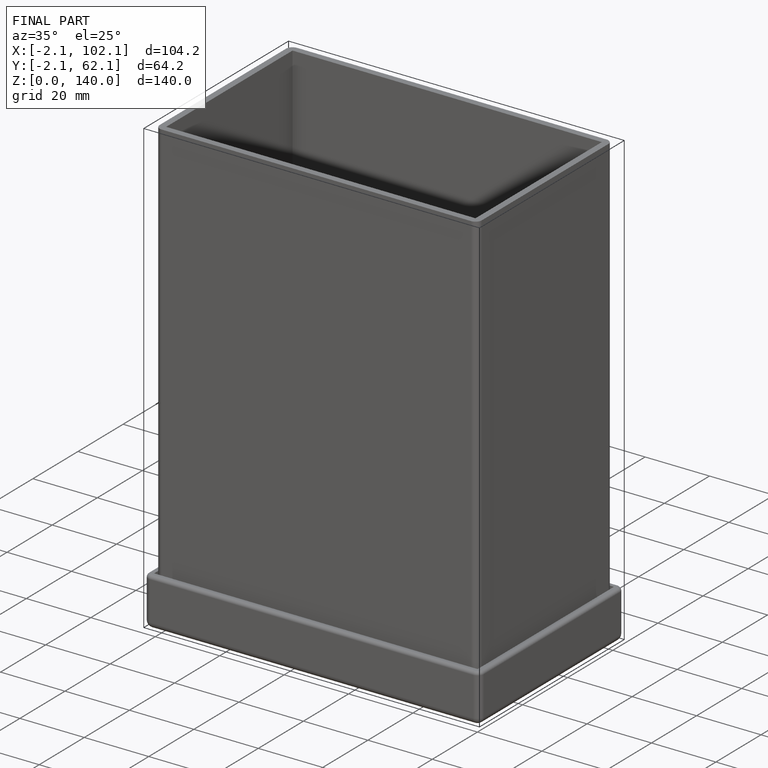
[diagram: finished part — iso view with bounding-box wireframe]
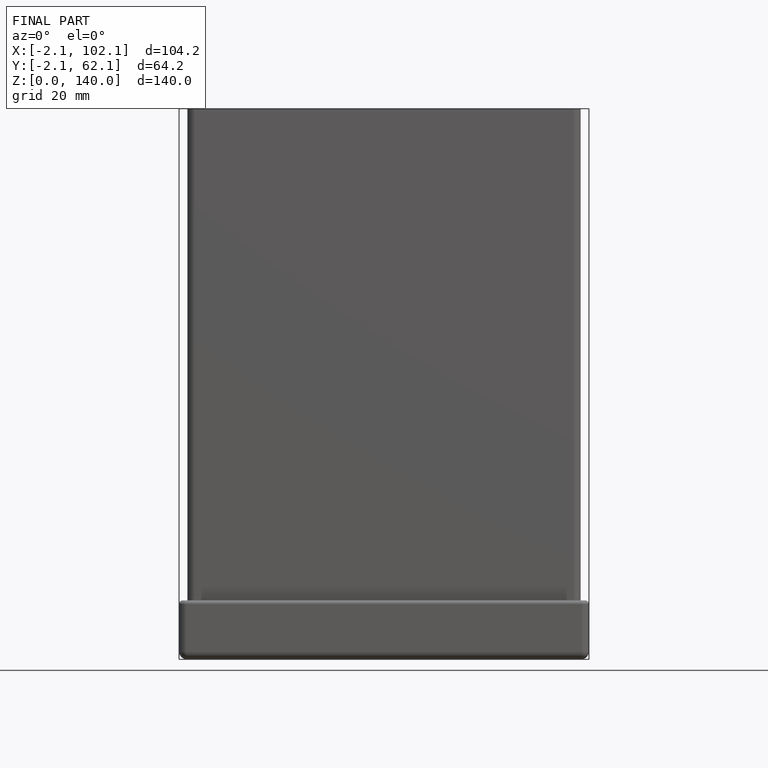
[diagram: finished part — front view with bounding-box wireframe]
